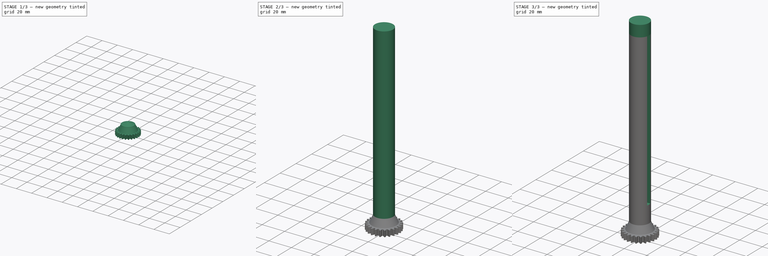
[diagram: build sequence overview — one tinted view per stage of 3, left to right]
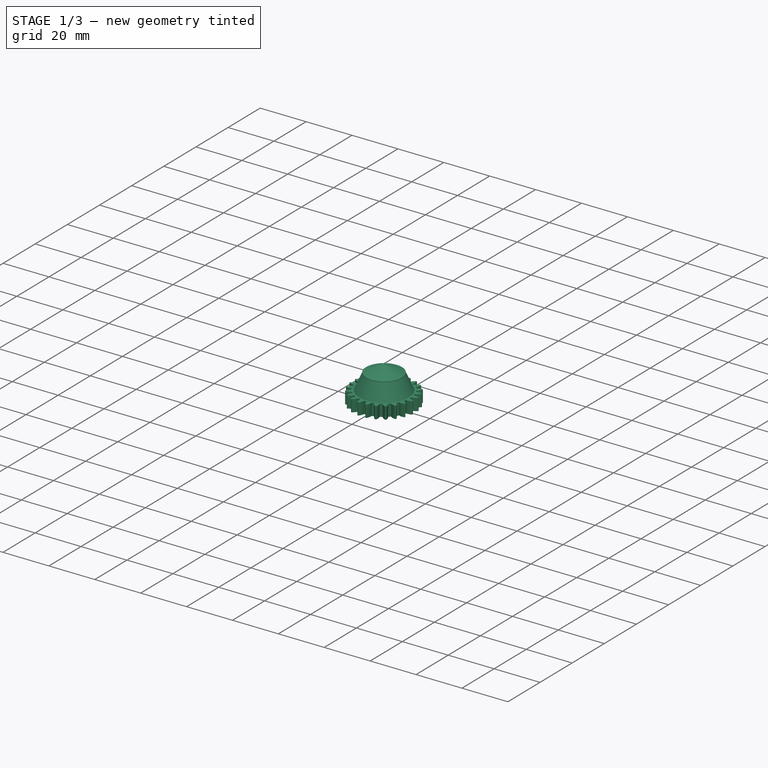
[diagram: stage 1 of 3 — iso view after this stage's code; geometry added in this stage tinted green]
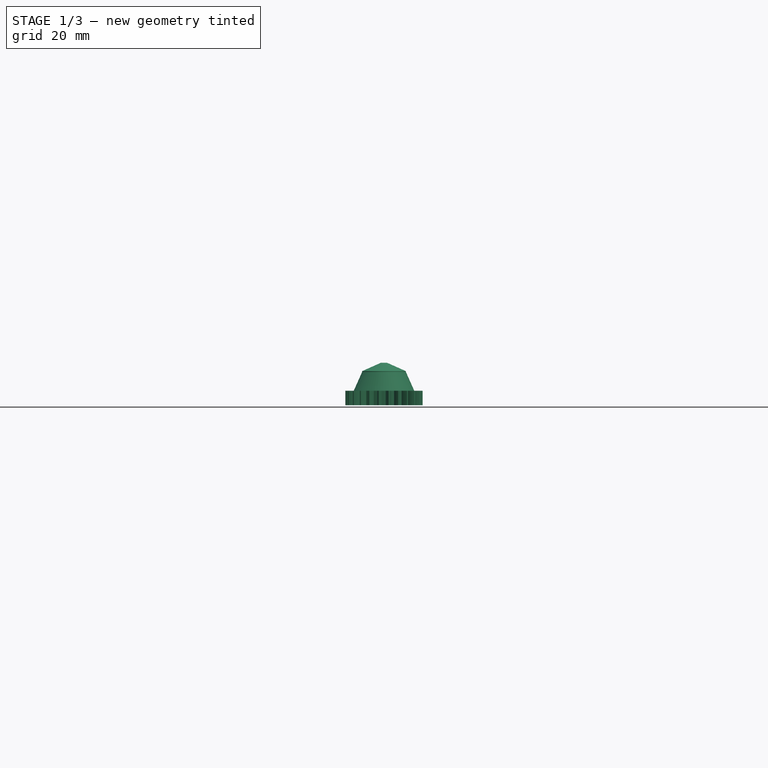
[diagram: stage 1 of 3 — front view after this stage's code; geometry added in this stage tinted green]
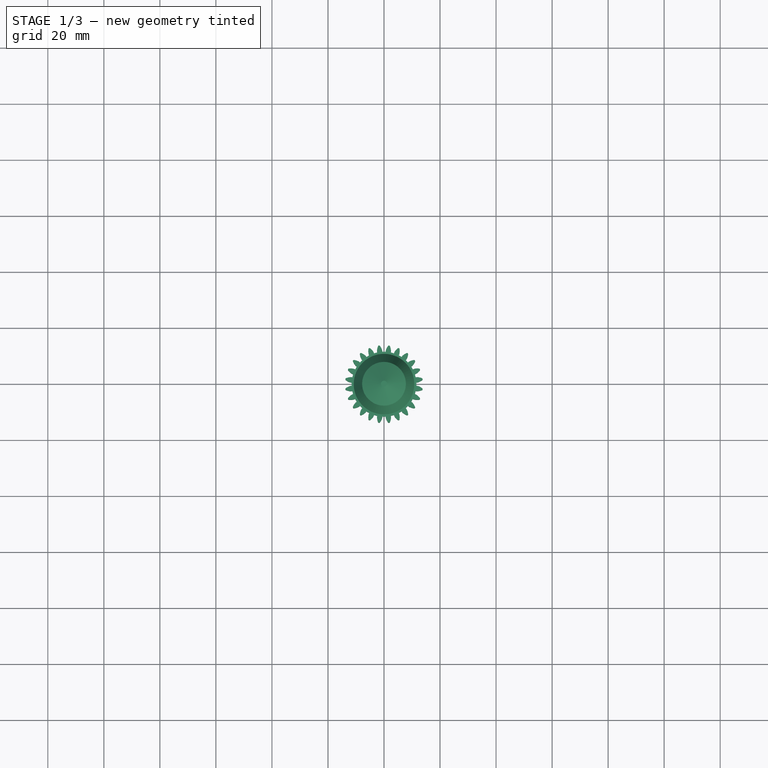
[diagram: stage 1 of 3 — top view after this stage's code; geometry added in this stage tinted green]
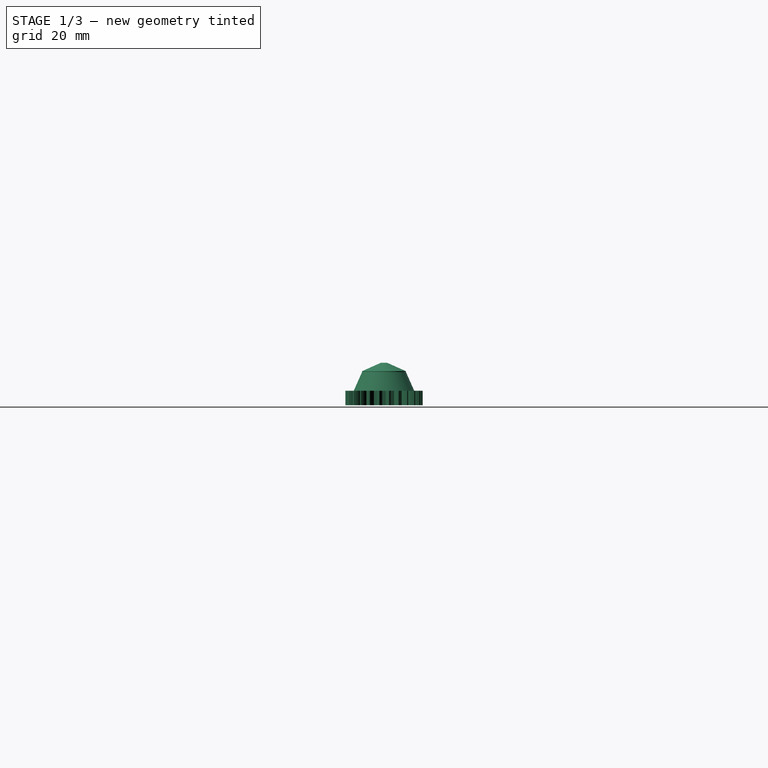
[diagram: stage 1 of 3 — right view after this stage's code; geometry added in this stage tinted green]
FCSTD DOCUMENT  (FreeCAD 1.0R38641 +468 (Git))
Label: probe-shaft-01
License: All rights reserved
LicenseURL: http://en.wikipedia.org/wiki/All_rights_reserved
objects: Sketcher::SketchObject×5, PartDesign::Pad×3, PartDesign::Pocket×2, PartDesign::Chamfer×1, PartDesign::AdditiveCylinder×1, PartDesign::Fillet×1, PartDesign::Body×1
note: 35 computed .brp shape members not serialized (recipe doc carries the construction recipe); baked Part::Feature solids carry a one-line shape summary decoded from their .brp

FEATURE [Sketcher::SketchObject] Sketch001
  ArcFitTolerance = 1e-06
  FullyConstrained = false
  MakeInternals = false
  sketch-geometry (144):
    g0: LineSegment StartX=11.5352 StartY=0.583552 StartZ=0 EndX=11.8451 EndY=0.600013 EndZ=0
    g1: BSplineCurve PolesCount=5 KnotsCount=2 Degree=4 IsPeriodic=0
    g2: ArcOfCircle CenterX=13.3835 CenterY=1.76198 CenterZ=0 NormalX=0 NormalY=0 NormalZ=1 AngleXU=-0.907688 Radius=0.399 StartAngle=0 EndAngle=2.07717
    g3: BSplineCurve PolesCount=5 KnotsCount=2 Degree=4 IsPeriodic=0
    g4: LineSegment StartX=11.5968 StartY=2.48617 StartZ=0 EndX=11.2932 EndY=2.42187 EndZ=0
    g5: ArcOfCircle CenterX=-1.377e-13 CenterY=-3.04e-14 CenterZ=0 NormalX=0 NormalY=0 NormalZ=1 AngleXU=0.211254 Radius=11.55 StartAngle=0 EndAngle=0.101091
    g6: LineSegment StartX=10.9912 StartY=3.54921 StartZ=0 EndX=11.2862 EndY=3.64531 EndZ=0
    g7: BSplineCurve PolesCount=5 KnotsCount=2 Degree=4 IsPeriodic=0
    g8: ArcOfCircle CenterX=12.4715 CenterY=5.16586 CenterZ=0 NormalX=0 NormalY=0 NormalZ=1 AngleXU=-0.645888 Radius=0.399 StartAngle=0 EndAngle=2.07717
    g9: BSplineCurve PolesCount=5 KnotsCount=2 Degree=4 IsPeriodic=0
    g10: LineSegment StartX=10.5582 StartY=5.40292 StartZ=0 EndX=10.2816 EndY=5.26225 EndZ=0
    g11: ArcOfCircle CenterX=-2.833e-13 CenterY=-1.781e-13 CenterZ=0 NormalX=0 NormalY=0 NormalZ=1 AngleXU=0.473053 Radius=11.55 StartAngle=0 EndAngle=0.101091
    g12: LineSegment StartX=9.69804 StartY=6.27299 StartZ=0 EndX=9.95815 EndY=6.44218 EndZ=0
    g13: BSplineCurve PolesCount=5 KnotsCount=2 Degree=4 IsPeriodic=0
    g14: ArcOfCircle CenterX=10.7095 CenterY=8.21769 CenterZ=0 NormalX=0 NormalY=0 NormalZ=1 AngleXU=-0.384089 Radius=0.399 StartAngle=0 EndAngle=2.07717
    g15: BSplineCurve PolesCount=5 KnotsCount=2 Degree=4 IsPeriodic=0
    g16: LineSegment StartX=8.80003 StartY=7.95148 StartZ=0 EndX=8.56929 EndY=7.74402 EndZ=0
    g17: ArcOfCircle CenterX=6.972e-13 CenterY=6.954e-13 CenterZ=0 NormalX=0 NormalY=0 NormalZ=1 AngleXU=0.734853 Radius=11.55 StartAngle=0 EndAngle=0.101091
    g18: LineSegment StartX=7.74402 StartY=8.56929 StartZ=0 EndX=7.95148 EndY=8.80003 EndZ=0
    g19: BSplineCurve PolesCount=5 KnotsCount=2 Degree=4 IsPeriodic=0
    g20: ArcOfCircle CenterX=8.21769 CenterY=10.7095 CenterZ=0 NormalX=0 NormalY=0 NormalZ=1 AngleXU=-0.12229 Radius=0.399 StartAngle=0 EndAngle=2.07717
    g21: BSplineCurve PolesCount=5 KnotsCount=2 Degree=4 IsPeriodic=0
    g22: LineSegment StartX=6.44218 StartY=9.95815 StartZ=0 EndX=6.27299 EndY=9.69804 EndZ=0
    g23: ArcOfCircle CenterX=6.652e-13 CenterY=1.1751e-12 CenterZ=0 NormalX=0 NormalY=0 NormalZ=1 AngleXU=0.996652 Radius=11.55 StartAngle=0 EndAngle=0.101091
    g24: LineSegment StartX=5.26225 StartY=10.2816 StartZ=0 EndX=5.40292 EndY=10.5582 EndZ=0
    g25: BSplineCurve PolesCount=5 KnotsCount=2 Degree=4 IsPeriodic=0
    g26: ArcOfCircle CenterX=5.16586 CenterY=12.4715 CenterZ=0 NormalX=0 NormalY=0 NormalZ=1 AngleXU=0.13951 Radius=0.399 StartAngle=0 EndAngle=2.07717
    g27: BSplineCurve PolesCount=5 KnotsCount=2 Degree=4 IsPeriodic=0
    g28: LineSegment StartX=3.64531 StartY=11.2862 StartZ=0 EndX=3.54921 EndY=10.9912 EndZ=0
    g29: ArcOfCircle CenterX=3.29e-14 CenterY=1.563e-13 CenterZ=0 NormalX=0 NormalY=0 NormalZ=1 AngleXU=1.25845 Radius=11.55 StartAngle=0 EndAngle=0.101091
    g30: LineSegment StartX=2.42187 StartY=11.2932 StartZ=0 EndX=2.48617 EndY=11.5968 EndZ=0
    g31: BSplineCurve PolesCount=5 KnotsCount=2 Degree=4 IsPeriodic=0
    g32: ArcOfCircle CenterX=1.76198 CenterY=13.3835 CenterZ=0 NormalX=0 NormalY=0 NormalZ=1 AngleXU=0.401309 Radius=0.399 StartAngle=0 EndAngle=2.07717
    g33: BSplineCurve PolesCount=5 KnotsCount=2 Degree=4 IsPeriodic=0
    g34: LineSegment StartX=0.600013 StartY=11.8451 StartZ=0 EndX=0.583552 EndY=11.5352 EndZ=0
    g35: ArcOfCircle CenterX=1.4e-15 CenterY=-2.2116e-12 CenterZ=0 NormalX=0 NormalY=0 NormalZ=1 AngleXU=1.52025 Radius=11.55 StartAngle=0 EndAngle=0.101091
    g36: LineSegment StartX=-0.583552 StartY=11.5352 StartZ=0 EndX=-0.600013 EndY=11.8451 EndZ=0
    g37: BSplineCurve PolesCount=5 KnotsCount=2 Degree=4 IsPeriodic=0
    g38: ArcOfCircle CenterX=-1.76198 CenterY=13.3835 CenterZ=0 NormalX=0 NormalY=0 NormalZ=1 AngleXU=0.663109 Radius=0.399 StartAngle=0 EndAngle=2.07717
    g39: BSplineCurve PolesCount=5 KnotsCount=2 Degree=4 IsPeriodic=0
    g40: LineSegment StartX=-2.48617 StartY=11.5968 StartZ=0 EndX=-2.42187 EndY=11.2932 EndZ=0
    g41: ArcOfCircle CenterX=2.749e-13 CenterY=-1.0578e-12 CenterZ=0 NormalX=0 NormalY=0 NormalZ=1 AngleXU=1.78205 Radius=11.55 StartAngle=0 EndAngle=0.101091
    g42: LineSegment StartX=-3.54921 StartY=10.9912 StartZ=0 EndX=-3.64531 EndY=11.2862 EndZ=0
    g43: BSplineCurve PolesCount=5 KnotsCount=2 Degree=4 IsPeriodic=0
    g44: ArcOfCircle CenterX=-5.16586 CenterY=12.4715 CenterZ=0 NormalX=0 NormalY=0 NormalZ=1 AngleXU=0.924908 Radius=0.399 StartAngle=0 EndAngle=2.07717
    g45: BSplineCurve PolesCount=5 KnotsCount=2 Degree=4 IsPeriodic=0
    g46: LineSegment StartX=-5.40292 StartY=10.5582 StartZ=0 EndX=-5.26225 EndY=10.2816 EndZ=0
    g47: ArcOfCircle CenterX=1.67e-13 CenterY=-2.736e-13 CenterZ=0 NormalX=0 NormalY=0 NormalZ=1 AngleXU=2.04385 Radius=11.55 StartAngle=0 EndAngle=0.101091
    g48: LineSegment StartX=-6.27299 StartY=9.69804 StartZ=0 EndX=-6.44218 EndY=9.95815 EndZ=0
    g49: BSplineCurve PolesCount=5 KnotsCount=2 Degree=4 IsPeriodic=0
    g50: ArcOfCircle CenterX=-8.21769 CenterY=10.7095 CenterZ=0 NormalX=0 NormalY=0 NormalZ=1 AngleXU=1.18671 Radius=0.399 StartAngle=0 EndAngle=2.07717
    g51: BSplineCurve PolesCount=5 KnotsCount=2 Degree=4 IsPeriodic=0
    g52: LineSegment StartX=-7.95148 StartY=8.80003 StartZ=0 EndX=-7.74402 EndY=8.56929 EndZ=0
    g53: ArcOfCircle CenterX=1.3545e-12 CenterY=-1.3571e-12 CenterZ=0 NormalX=0 NormalY=0 NormalZ=1 AngleXU=2.30565 Radius=11.55 StartAngle=0 EndAngle=0.101091
    g54: LineSegment StartX=-8.56929 StartY=7.74402 StartZ=0 EndX=-8.80003 EndY=7.95148 EndZ=0
    g55: BSplineCurve PolesCount=5 KnotsCount=2 Degree=4 IsPeriodic=0
    g56: ArcOfCircle CenterX=-10.7095 CenterY=8.21769 CenterZ=0 NormalX=0 NormalY=0 NormalZ=1 AngleXU=1.44851 Radius=0.399 StartAngle=0 EndAngle=2.07717
    g57: BSplineCurve PolesCount=5 KnotsCount=2 Degree=4 IsPeriodic=0
    g58: LineSegment StartX=-9.95815 StartY=6.44218 StartZ=0 EndX=-9.69804 EndY=6.27299 EndZ=0
    g59: ArcOfCircle CenterX=-8.029e-13 CenterY=4.716e-13 CenterZ=0 NormalX=0 NormalY=0 NormalZ=1 AngleXU=2.56745 Radius=11.55 StartAngle=0 EndAngle=0.101091
    g60: LineSegment StartX=-10.2816 StartY=5.26225 StartZ=0 EndX=-10.5582 EndY=5.40292 EndZ=0
    g61: BSplineCurve PolesCount=5 KnotsCount=2 Degree=4 IsPeriodic=0
    g62: ArcOfCircle CenterX=-12.4715 CenterY=5.16586 CenterZ=0 NormalX=0 NormalY=0 NormalZ=1 AngleXU=1.71031 Radius=0.399 StartAngle=0 EndAngle=2.07717
    g63: BSplineCurve PolesCount=5 KnotsCount=2 Degree=4 IsPeriodic=0
    g64: LineSegment StartX=-11.2862 StartY=3.64531 StartZ=0 EndX=-10.9912 EndY=3.54921 EndZ=0
    g65: ArcOfCircle CenterX=9.21e-13 CenterY=-2.329e-13 CenterZ=0 NormalX=0 NormalY=0 NormalZ=1 AngleXU=2.82925 Radius=11.55 StartAngle=0 EndAngle=0.101091
    g66: LineSegment StartX=-11.2932 StartY=2.42187 StartZ=0 EndX=-11.5968 EndY=2.48617 EndZ=0
    g67: BSplineCurve PolesCount=5 KnotsCount=2 Degree=4 IsPeriodic=0
    g68: ArcOfCircle CenterX=-13.3835 CenterY=1.76198 CenterZ=0 NormalX=0 NormalY=0 NormalZ=1 AngleXU=1.97211 Radius=0.399 StartAngle=0 EndAngle=2.07717
    g69: BSplineCurve PolesCount=5 KnotsCount=2 Degree=4 IsPeriodic=0
    g70: LineSegment StartX=-11.8451 StartY=0.600013 StartZ=0 EndX=-11.5352 EndY=0.583552 EndZ=0
    g71: ArcOfCircle CenterX=5.107e-13 CenterY=-1.29e-14 CenterZ=0 NormalX=0 NormalY=0 NormalZ=1 AngleXU=3.09105 Radius=11.55 StartAngle=0 EndAngle=0.101091
    g72: LineSegment StartX=-11.5352 StartY=-0.583552 StartZ=0 EndX=-11.8451 EndY=-0.600013 EndZ=0
    g73: BSplineCurve PolesCount=5 KnotsCount=2 Degree=4 IsPeriodic=0
    g74: ArcOfCircle CenterX=-13.3835 CenterY=-1.76198 CenterZ=0 NormalX=0 NormalY=0 NormalZ=1 AngleXU=2.2339 Radius=0.399 StartAngle=0 EndAngle=2.07717
    g75: BSplineCurve PolesCount=5 KnotsCount=2 Degree=4 IsPeriodic=0
    g76: LineSegment StartX=-11.5968 StartY=-2.48617 StartZ=0 EndX=-11.2932 EndY=-2.42187 EndZ=0
    g77: ArcOfCircle CenterX=1.0543e-12 CenterY=2.782e-13 CenterZ=0 NormalX=0 NormalY=0 NormalZ=1 AngleXU=-2.93034 Radius=11.55 StartAngle=0 EndAngle=0.101091
    g78: LineSegment StartX=-10.9912 StartY=-3.54921 StartZ=0 EndX=-11.2862 EndY=-3.64531 EndZ=0
    g79: BSplineCurve PolesCount=5 KnotsCount=2 Degree=4 IsPeriodic=0
    g80: ArcOfCircle CenterX=-12.4715 CenterY=-5.16586 CenterZ=0 NormalX=0 NormalY=0 NormalZ=1 AngleXU=2.4957 Radius=0.399 StartAngle=0 EndAngle=2.07717
    g81: BSplineCurve PolesCount=5 KnotsCount=2 Degree=4 IsPeriodic=0
    g82: LineSegment StartX=-10.5582 StartY=-5.40292 StartZ=0 EndX=-10.2816 EndY=-5.26225 EndZ=0
    g83: ArcOfCircle CenterX=4.414e-13 CenterY=2.576e-13 CenterZ=0 NormalX=0 NormalY=0 NormalZ=1 AngleXU=-2.66854 Radius=11.55 StartAngle=0 EndAngle=0.101091
    g84: LineSegment StartX=-9.69804 StartY=-6.27299 StartZ=0 EndX=-9.95815 EndY=-6.44218 EndZ=0
    g85: BSplineCurve PolesCount=5 KnotsCount=2 Degree=4 IsPeriodic=0
    g86: ArcOfCircle CenterX=-10.7095 CenterY=-8.21769 CenterZ=0 NormalX=0 NormalY=0 NormalZ=1 AngleXU=2.7575 Radius=0.399 StartAngle=0 EndAngle=2.07717
    g87: BSplineCurve PolesCount=5 KnotsCount=2 Degree=4 IsPeriodic=0
    g88: LineSegment StartX=-8.80003 StartY=-7.95148 StartZ=0 EndX=-8.56929 EndY=-7.74402 EndZ=0
    g89: ArcOfCircle CenterX=1.3571e-12 CenterY=1.3545e-12 CenterZ=0 NormalX=0 NormalY=0 NormalZ=1 AngleXU=-2.40674 Radius=11.55 StartAngle=0 EndAngle=0.101091
    g90: LineSegment StartX=-7.74402 StartY=-8.56929 StartZ=0 EndX=-7.95148 EndY=-8.80003 EndZ=0
    g91: BSplineCurve PolesCount=5 KnotsCount=2 Degree=4 IsPeriodic=0
    g92: ArcOfCircle CenterX=-8.21769 CenterY=-10.7095 CenterZ=0 NormalX=0 NormalY=0 NormalZ=1 AngleXU=3.0193 Radius=0.399 StartAngle=0 EndAngle=2.07717
    g93: BSplineCurve PolesCount=5 KnotsCount=2 Degree=4 IsPeriodic=0
    g94: LineSegment StartX=-6.44218 StartY=-9.95815 StartZ=0 EndX=-6.27299 EndY=-9.69804 EndZ=0
    g95: ArcOfCircle CenterX=-4.716e-13 CenterY=-8.011e-13 CenterZ=0 NormalX=0 NormalY=0 NormalZ=1 AngleXU=-2.14494 Radius=11.55 StartAngle=0 EndAngle=0.101091
    g96: LineSegment StartX=-5.26225 StartY=-10.2816 StartZ=0 EndX=-5.40292 EndY=-10.5582 EndZ=0
    g97: BSplineCurve PolesCount=5 KnotsCount=2 Degree=4 IsPeriodic=0
    g98: ArcOfCircle CenterX=-5.16586 CenterY=-12.4715 CenterZ=0 NormalX=0 NormalY=0 NormalZ=1 AngleXU=-3.00208 Radius=0.399 StartAngle=0 EndAngle=2.07717
    g99: BSplineCurve PolesCount=5 KnotsCount=2 Degree=4 IsPeriodic=0
    g100: LineSegment StartX=-3.64531 StartY=-11.2862 StartZ=0 EndX=-3.54921 EndY=-10.9912 EndZ=0
    g101: ArcOfCircle CenterX=2.329e-13 CenterY=9.21e-13 CenterZ=0 NormalX=0 NormalY=0 NormalZ=1 AngleXU=-1.88314 Radius=11.55 StartAngle=0 EndAngle=0.101091
    g102: LineSegment StartX=-2.42187 StartY=-11.2932 StartZ=0 EndX=-2.48617 EndY=-11.5968 EndZ=0
    g103: BSplineCurve PolesCount=5 KnotsCount=2 Degree=4 IsPeriodic=0
    g104: ArcOfCircle CenterX=-1.76198 CenterY=-13.3835 CenterZ=0 NormalX=0 NormalY=0 NormalZ=1 AngleXU=-2.74028 Radius=0.399 StartAngle=0 EndAngle=2.07717
    g105: BSplineCurve PolesCount=5 KnotsCount=2 Degree=4 IsPeriodic=0
    g106: LineSegment StartX=-0.600013 StartY=-11.8451 StartZ=0 EndX=-0.583552 EndY=-11.5352 EndZ=0
    g107: ArcOfCircle CenterX=7.1e-15 CenterY=1.5135e-12 CenterZ=0 NormalX=0 NormalY=0 NormalZ=1 AngleXU=-1.62134 Radius=11.55 StartAngle=0 EndAngle=0.101091
    g108: LineSegment StartX=0.583552 StartY=-11.5352 StartZ=0 EndX=0.600013 EndY=-11.8451 EndZ=0
    g109: BSplineCurve PolesCount=5 KnotsCount=2 Degree=4 IsPeriodic=0
    g110: ArcOfCircle CenterX=1.76198 CenterY=-13.3835 CenterZ=0 NormalX=0 NormalY=0 NormalZ=1 AngleXU=-2.47848 Radius=0.399 StartAngle=0 EndAngle=2.07717
    g111: BSplineCurve PolesCount=5 KnotsCount=2 Degree=4 IsPeriodic=0
    g112: LineSegment StartX=2.48617 StartY=-11.5968 StartZ=0 EndX=2.42187 EndY=-11.2932 EndZ=0
    g113: ArcOfCircle CenterX=2.849e-13 CenterY=-1.0463e-12 CenterZ=0 NormalX=0 NormalY=0 NormalZ=1 AngleXU=-1.35954 Radius=11.55 StartAngle=0 EndAngle=0.101091
    g114: LineSegment StartX=3.54921 StartY=-10.9912 StartZ=0 EndX=3.64531 EndY=-11.2862 EndZ=0
    g115: BSplineCurve PolesCount=5 KnotsCount=2 Degree=4 IsPeriodic=0
    g116: ArcOfCircle CenterX=5.16586 CenterY=-12.4715 CenterZ=0 NormalX=0 NormalY=0 NormalZ=1 AngleXU=-2.21668 Radius=0.399 StartAngle=0 EndAngle=2.07717
    g117: BSplineCurve PolesCount=5 KnotsCount=2 Degree=4 IsPeriodic=0
    g118: LineSegment StartX=5.40292 StartY=-10.5582 StartZ=0 EndX=5.26225 EndY=-10.2816 EndZ=0
    g119: ArcOfCircle CenterX=2.784e-13 CenterY=-4.805e-13 CenterZ=0 NormalX=0 NormalY=0 NormalZ=1 AngleXU=-1.09774 Radius=11.55 StartAngle=0 EndAngle=0.101091
    g120: LineSegment StartX=6.27299 StartY=-9.69804 StartZ=0 EndX=6.44218 EndY=-9.95815 EndZ=0
    g121: BSplineCurve PolesCount=5 KnotsCount=2 Degree=4 IsPeriodic=0
    g122: ArcOfCircle CenterX=8.21769 CenterY=-10.7095 CenterZ=0 NormalX=0 NormalY=0 NormalZ=1 AngleXU=-1.95489 Radius=0.399 StartAngle=0 EndAngle=2.07717
    g123: BSplineCurve PolesCount=5 KnotsCount=2 Degree=4 IsPeriodic=0
    g124: LineSegment StartX=7.95148 StartY=-8.80003 StartZ=0 EndX=7.74402 EndY=-8.56929 EndZ=0
    g125: ArcOfCircle CenterX=6.883e-13 CenterY=-7.043e-13 CenterZ=0 NormalX=0 NormalY=0 NormalZ=1 AngleXU=-0.835944 Radius=11.55 StartAngle=0 EndAngle=0.101091
    g126: LineSegment StartX=8.56929 StartY=-7.74402 StartZ=0 EndX=8.80003 EndY=-7.95148 EndZ=0
    g127: BSplineCurve PolesCount=5 KnotsCount=2 Degree=4 IsPeriodic=0
    g128: ArcOfCircle CenterX=10.7095 CenterY=-8.21769 CenterZ=0 NormalX=0 NormalY=0 NormalZ=1 AngleXU=-1.69309 Radius=0.399 StartAngle=0 EndAngle=2.07717
    g129: BSplineCurve PolesCount=5 KnotsCount=2 Degree=4 IsPeriodic=0
    g130: LineSegment StartX=9.95815 StartY=-6.44218 StartZ=0 EndX=9.69804 EndY=-6.27299 EndZ=0
    g131: ArcOfCircle CenterX=8.011e-13 CenterY=-4.716e-13 CenterZ=0 NormalX=0 NormalY=0 NormalZ=1 AngleXU=-0.574144 Radius=11.55 StartAngle=0 EndAngle=0.101091
    g132: LineSegment StartX=10.2816 StartY=-5.26225 StartZ=0 EndX=10.5582 EndY=-5.40292 EndZ=0
    g133: BSplineCurve PolesCount=5 KnotsCount=2 Degree=4 IsPeriodic=0
    g134: ArcOfCircle CenterX=12.4715 CenterY=-5.16586 CenterZ=0 NormalX=0 NormalY=0 NormalZ=1 AngleXU=-1.43129 Radius=0.399 StartAngle=0 EndAngle=2.07717
    g135: BSplineCurve PolesCount=5 KnotsCount=2 Degree=4 IsPeriodic=0
    g136: LineSegment StartX=11.2862 StartY=-3.64531 StartZ=0 EndX=10.9912 EndY=-3.54921 EndZ=0
    g137: ArcOfCircle CenterX=-9.21e-13 CenterY=2.32e-13 CenterZ=0 NormalX=0 NormalY=0 NormalZ=1 AngleXU=-0.312345 Radius=11.55 StartAngle=0 EndAngle=0.101091
    g138: LineSegment StartX=11.2932 StartY=-2.42187 StartZ=0 EndX=11.5968 EndY=-2.48617 EndZ=0
    g139: BSplineCurve PolesCount=5 KnotsCount=2 Degree=4 IsPeriodic=0
    g140: ArcOfCircle CenterX=13.3835 CenterY=-1.76198 CenterZ=0 NormalX=0 NormalY=0 NormalZ=1 AngleXU=-1.16949 Radius=0.399 StartAngle=0 EndAngle=2.07717
    g141: BSplineCurve PolesCount=5 KnotsCount=2 Degree=4 IsPeriodic=0
    g142: LineSegment StartX=11.8451 StartY=-0.600013 StartZ=0 EndX=11.5352 EndY=-0.583552 EndZ=0
    g143: ArcOfCircle CenterX=-1.5135e-12 CenterY=6.2e-15 CenterZ=0 NormalX=0 NormalY=0 NormalZ=1 AngleXU=-0.0505455 Radius=11.55 StartAngle=0 EndAngle=0.101091
  constraints (144):
    c: Coincident(g0,g1)
    c: Coincident(g1,g2)
    c: Coincident(g2,g3)
    c: Coincident(g3,g4)
    c: Coincident(g4,g5)
    c: Coincident(g5,g6)
    c: Coincident(g6,g7)
    c: Coincident(g7,g8)
    c: Coincident(g8,g9)
    c: Coincident(g9,g10)
    c: Coincident(g10,g11)
    c: Coincident(g11,g12)
    c: Coincident(g12,g13)
    c: Coincident(g13,g14)
    c: Coincident(g14,g15)
    c: Coincident(g15,g16)
    c: Coincident(g16,g17)
    c: Coincident(g17,g18)
    c: Coincident(g18,g19)
    c: Coincident(g19,g20)
    c: Coincident(g20,g21)
    c: Coincident(g21,g22)
    c: Coincident(g22,g23)
    c: Coincident(g23,g24)
    c: Coincident(g24,g25)
    c: Coincident(g25,g26)
    c: Coincident(g26,g27)
    c: Coincident(g27,g28)
    c: Coincident(g28,g29)
    c: Coincident(g29,g30)
    c: Coincident(g30,g31)
    c: Coincident(g31,g32)
    c: Coincident(g32,g33)
    c: Coincident(g33,g34)
    c: Coincident(g34,g35)
    c: Coincident(g35,g36)
    c: Coincident(g36,g37)
    c: Coincident(g37,g38)
    c: Coincident(g38,g39)
    c: Coincident(g39,g40)
    c: Coincident(g40,g41)
    c: Coincident(g41,g42)
    c: Coincident(g42,g43)
    c: Coincident(g43,g44)
    c: Coincident(g44,g45)
    c: Coincident(g45,g46)
    c: Coincident(g46,g47)
    c: Coincident(g47,g48)
    c: Coincident(g48,g49)
    c: Coincident(g49,g50)
    c: Coincident(g50,g51)
    c: Coincident(g51,g52)
    c: Coincident(g52,g53)
    c: Coincident(g53,g54)
    c: Coincident(g54,g55)
    c: Coincident(g55,g56)
    c: Coincident(g56,g57)
    c: Coincident(g57,g58)
    c: Coincident(g58,g59)
    c: Coincident(g59,g60)
    c: Coincident(g60,g61)
    c: Coincident(g61,g62)
    c: Coincident(g62,g63)
    c: Coincident(g63,g64)
    c: Coincident(g64,g65)
    c: Coincident(g65,g66)
    c: Coincident(g66,g67)
    c: Coincident(g67,g68)
    c: Coincident(g68,g69)
    c: Coincident(g69,g70)
    c: Coincident(g70,g71)
    c: Coincident(g71,g72)
    c: Coincident(g72,g73)
    c: Coincident(g73,g74)
    c: Coincident(g74,g75)
    c: Coincident(g75,g76)
    c: Coincident(g76,g77)
    c: Coincident(g77,g78)
    c: Coincident(g78,g79)
    c: Coincident(g79,g80)
    c: Coincident(g80,g81)
    c: Coincident(g81,g82)
    c: Coincident(g82,g83)
    c: Coincident(g83,g84)
    c: Coincident(g84,g85)
    c: Coincident(g85,g86)
    c: Coincident(g86,g87)
    c: Coincident(g87,g88)
    c: Coincident(g88,g89)
    c: Coincident(g89,g90)
    c: Coincident(g90,g91)
    c: Coincident(g91,g92)
    c: Coincident(g92,g93)
    c: Coincident(g93,g94)
    c: Coincident(g94,g95)
    c: Coincident(g95,g96)
    c: Coincident(g96,g97)
    c: Coincident(g97,g98)
    c: Coincident(g98,g99)
    c: Coincident(g99,g100)
    c: Coincident(g100,g101)
    c: Coincident(g101,g102)
    c: Coincident(g102,g103)
    c: Coincident(g103,g104)
    c: Coincident(g104,g105)
    c: Coincident(g105,g106)
    c: Coincident(g106,g107)
    c: Coincident(g107,g108)
    c: Coincident(g108,g109)
    c: Coincident(g109,g110)
    c: Coincident(g110,g111)
    c: Coincident(g111,g112)
    c: Coincident(g112,g113)
    c: Coincident(g113,g114)
    c: Coincident(g114,g115)
    c: Coincident(g115,g116)
    c: Coincident(g116,g117)
    c: Coincident(g117,g118)
    c: Coincident(g118,g119)
    c: Coincident(g119,g120)
    c: Coincident(g120,g121)
    c: Coincident(g121,g122)
    c: Coincident(g122,g123)
    c: Coincident(g123,g124)
    c: Coincident(g124,g125)
    c: Coincident(g125,g126)
    c: Coincident(g126,g127)
    c: Coincident(g127,g128)
    c: Coincident(g128,g129)
    c: Coincident(g129,g130)
    c: Coincident(g130,g131)
    c: Coincident(g131,g132)
    c: Coincident(g132,g133)
    c: Coincident(g133,g134)
    c: Coincident(g134,g135)
    c: Coincident(g135,g136)
    c: Coincident(g136,g137)
    c: Coincident(g137,g138)
    c: Coincident(g138,g139)
    c: Coincident(g139,g140)
    c: Coincident(g140,g141)
    c: Coincident(g141,g142)
    c: Coincident(g142,g143)
    c: Coincident(g143,g0)
FEATURE [PartDesign::Pad] Pad
  Direction = (0,0,1)
  Length = 5.2
  Length2 = 10
  Profile = -> Sketch001
  ReferenceAxis = -> Sketch001 [N_Axis]
  Refine = true
  Suppressed = false
  Type = 0
FEATURE [Sketcher::SketchObject] Sketch
  ArcFitTolerance = 1e-06
  FullyConstrained = true
  MakeInternals = false
  MapMode = 5
  Placement = pos=(0,0,5.2) rot=(0,0,1;0rad)
  sketch-geometry (1):
    g0: Circle CenterX=0 CenterY=0 CenterZ=0 NormalX=0 NormalY=0 NormalZ=1 AngleXU=0 Radius=7.8
  constraints (2):
    c: Coincident(g0,g-1)
    c: Diameter(g0) = 15.6
FEATURE [PartDesign::Pad] Pad001
  BaseFeature = -> Pad
  Direction = (0,0,1)
  Length = 10
  Length2 = 10
  Profile = -> Sketch
  ReferenceAxis = -> Sketch [N_Axis]
  Refine = true
  Suppressed = false
  Type = 0
FEATURE [PartDesign::Chamfer] Chamfer
  Angle = 66
  Base = -> Pad001 [Face147]
  BaseFeature = -> Pad001
  ChamferType = 2
  FlipDirection = false
  Refine = true
  Size = 3
  Size2 = 1
  SupportTransform = false
  Suppressed = false
  UseAllEdges = false
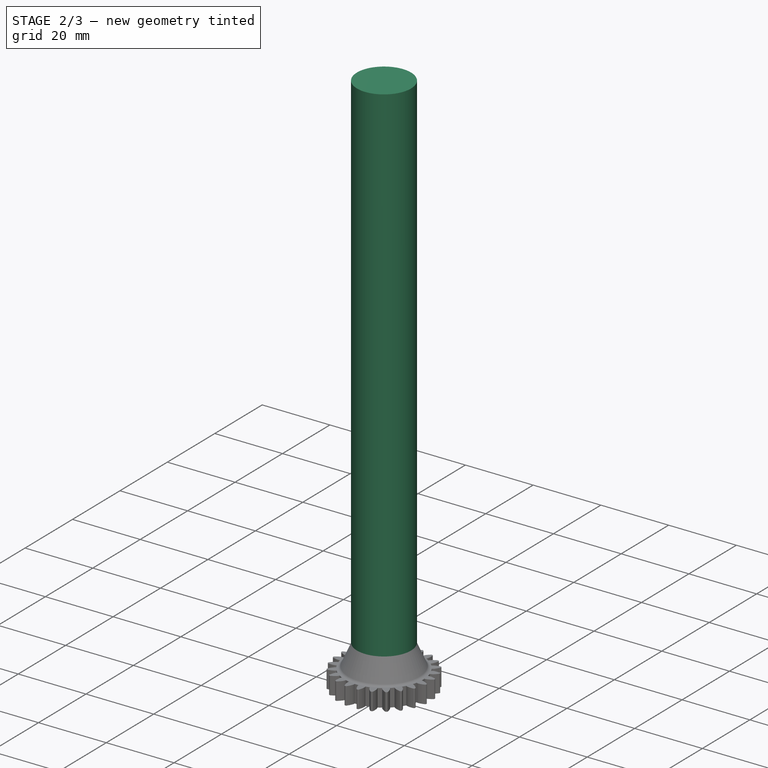
[diagram: stage 2 of 3 — iso view after this stage's code; geometry added in this stage tinted green]
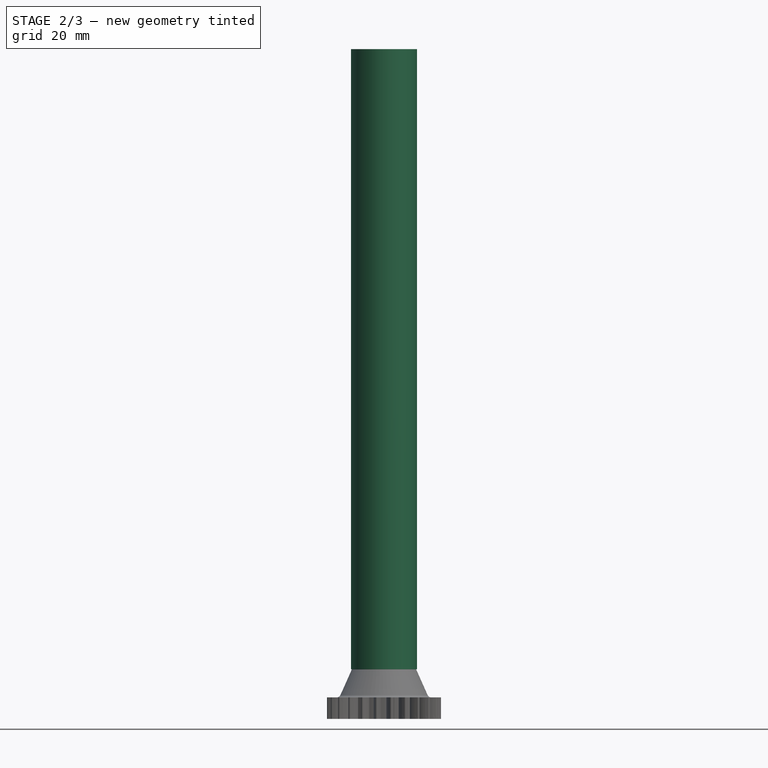
[diagram: stage 2 of 3 — front view after this stage's code; geometry added in this stage tinted green]
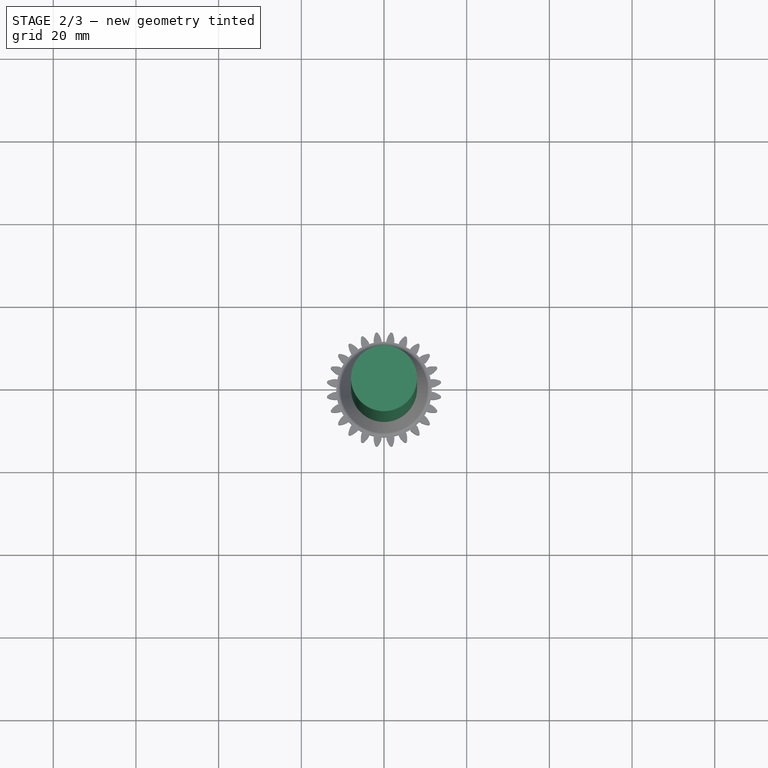
[diagram: stage 2 of 3 — top view after this stage's code; geometry added in this stage tinted green]
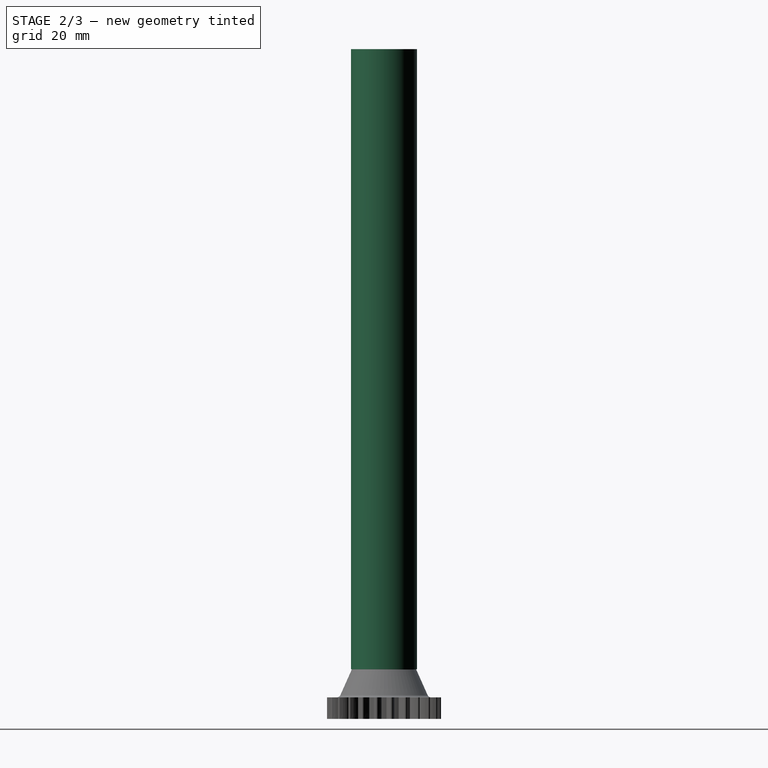
[diagram: stage 2 of 3 — right view after this stage's code; geometry added in this stage tinted green]
FEATURE [PartDesign::AdditiveCylinder] Cylinder
  Angle = 360
  AttacherType = Attacher::AttachEngine3D
  AttachmentOffset = pos=(0,0,12) rot=(0,0,1;0rad)
  AttachmentSupport = -> [XY_Plane]
  BaseFeature = -> Chamfer
  FirstAngle = 0
  Height = 150
  MapMode = 5
  Placement = pos=(0,0,12) rot=(0,0,1;0rad)
  Radius = 7.98
  Refine = true
  SecondAngle = 0
  Suppressed = false
FEATURE [PartDesign::Fillet] Fillet
  Base = -> Cylinder [Edge1]
  BaseFeature = -> Cylinder
  Placement = pos=(0,0,12) rot=(0,0,1;0rad)
  Radius = 1
  Refine = true
  SupportTransform = false
  Suppressed = false
  UseAllEdges = false
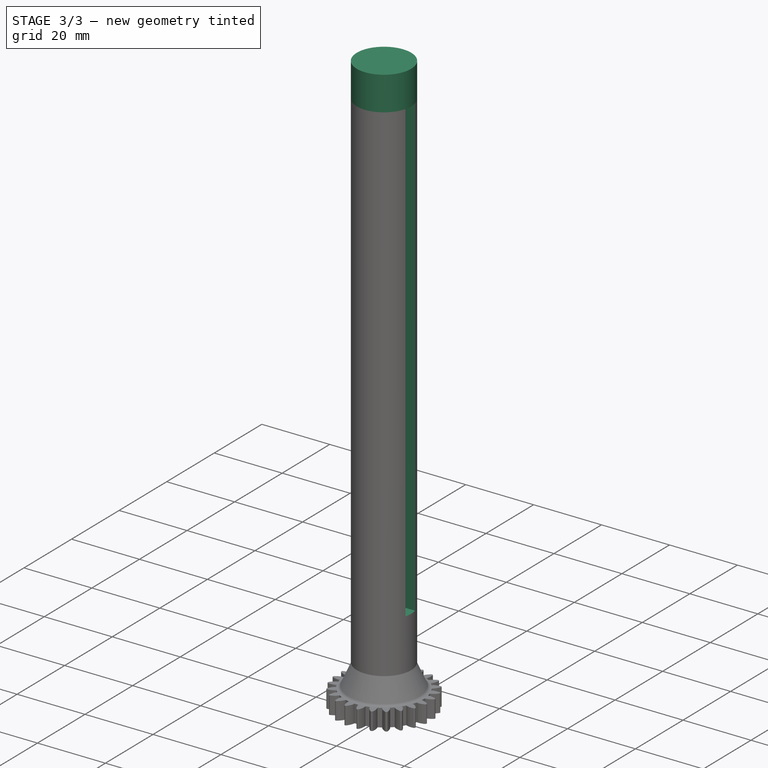
[diagram: stage 3 of 3 — iso view after this stage's code; geometry added in this stage tinted green]
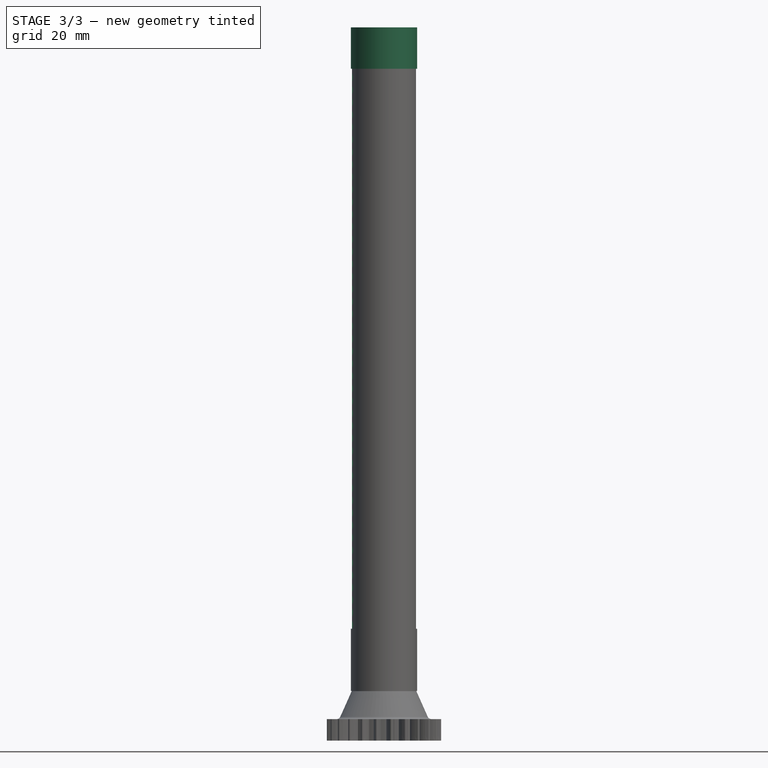
[diagram: stage 3 of 3 — front view after this stage's code; geometry added in this stage tinted green]
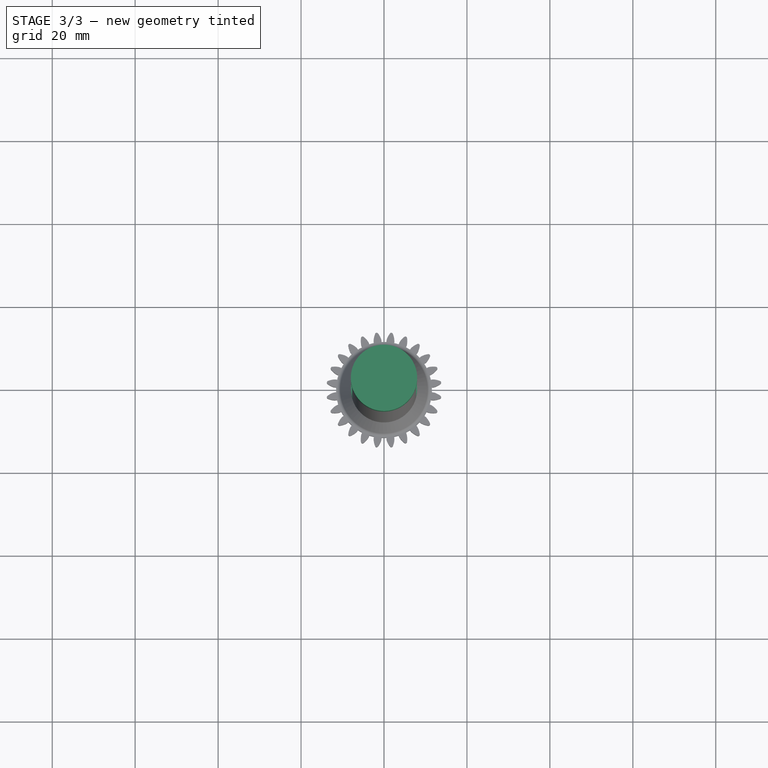
[diagram: stage 3 of 3 — top view after this stage's code; geometry added in this stage tinted green]
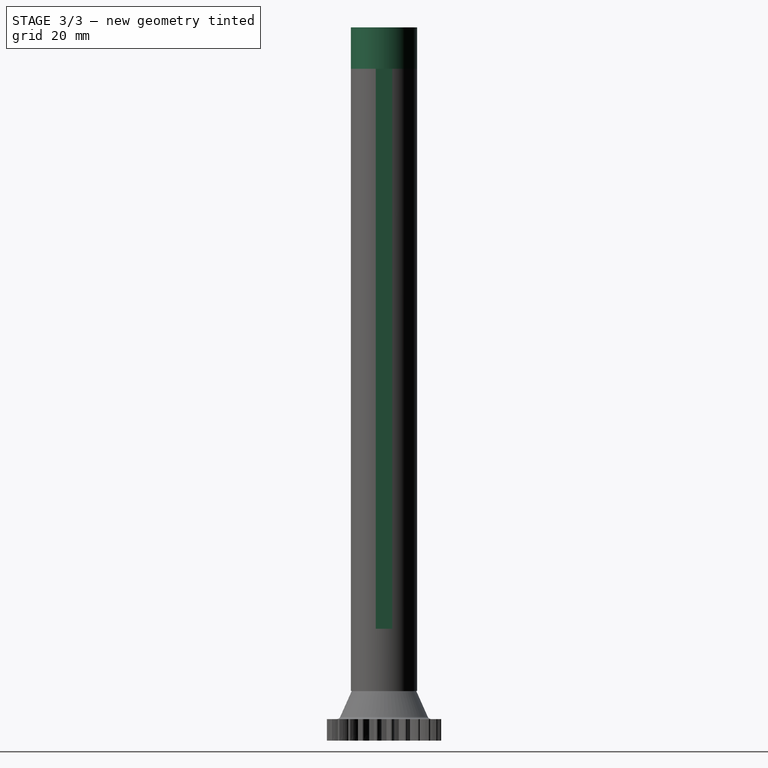
[diagram: stage 3 of 3 — right view after this stage's code; geometry added in this stage tinted green]
FEATURE [Sketcher::SketchObject] Sketch002
  ArcFitTolerance = 1e-06
  FullyConstrained = true
  MakeInternals = false
  MapMode = 5
  Placement = pos=(0,0,162) rot=(0,0,1;0rad)
  sketch-geometry (8):
    g0: LineSegment StartX=-8 StartY=2 StartZ=0 EndX=-8 EndY=-2 EndZ=0
    g1: LineSegment StartX=-8 StartY=-2 StartZ=0 EndX=-5 EndY=-2 EndZ=0
    g2: LineSegment StartX=-5 StartY=-2 StartZ=0 EndX=-5 EndY=2 EndZ=0
    g3: LineSegment StartX=-5 StartY=2 StartZ=0 EndX=-8 EndY=2 EndZ=0
    g4: LineSegment StartX=5 StartY=2 StartZ=0 EndX=5 EndY=-2 EndZ=0
    g5: LineSegment StartX=5 StartY=-2 StartZ=0 EndX=8 EndY=-2 EndZ=0
    g6: LineSegment StartX=8 StartY=-2 StartZ=0 EndX=8 EndY=2 EndZ=0
    g7: LineSegment StartX=8 StartY=2 StartZ=0 EndX=5 EndY=2 EndZ=0
  constraints (22):
    c: Coincident(g0,g1)
    c: Coincident(g1,g2)
    c: Coincident(g2,g3)
    c: Coincident(g3,g0)
    c: Vertical(g2)
    c: Horizontal(g1)
    c: Horizontal(g3)
    c: Coincident(g4,g5)
    c: Coincident(g5,g6)
    c: Coincident(g6,g7)
    c: Coincident(g7,g4)
    c: Vertical(g6)
    c: Horizontal(g5)
    c: Horizontal(g7)
    c: DistanceX(g0) = -8
    c: DistanceX(g5) = 8
    c: Symmetric(g0,g0,g-1)
    c: Symmetric(g4,g4,g-1)
    c: DistanceY(g2,g2) = 4
    c: DistanceY(g6,g6) = 4
    c: DistanceX(g1,g1) = 3
    c: DistanceX(g5,g5) = 3
FEATURE [PartDesign::Pocket] Pocket
  BaseFeature = -> Fillet
  Direction = (0,0,-1)
  Length = 135
  Length2 = 5
  Placement = pos=(0,0,12) rot=(0,0,1;0rad)
  Profile = -> Sketch002
  ReferenceAxis = -> Sketch002 [N_Axis]
  Refine = true
  Suppressed = false
  Type = 0
FEATURE [Sketcher::SketchObject] Sketch003
  ArcFitTolerance = 1e-06
  FullyConstrained = true
  MakeInternals = false
  MapMode = 5
  Placement = pos=(0,0,162) rot=(0,0,1;0rad)
  sketch-geometry (1):
    g0: Circle CenterX=0 CenterY=0 CenterZ=0 NormalX=0 NormalY=0 NormalZ=1 AngleXU=0 Radius=8
  constraints (2):
    c: Coincident(g0,g-1)
    c: Diameter(g0) = 16
FEATURE [PartDesign::Pad] Pad002
  BaseFeature = -> Pocket
  Direction = (0,0,1)
  Length = 10
  Length2 = 10
  Placement = pos=(0,0,12) rot=(0,0,1;0rad)
  Profile = -> Sketch003
  ReferenceAxis = -> Sketch003 [N_Axis]
  Refine = true
  Suppressed = false
  Type = 0
FEATURE [Sketcher::SketchObject] Sketch004
  ArcFitTolerance = 1e-06
  FullyConstrained = true
  MakeInternals = false
  MapMode = 5
  Placement = pos=(-5,0,12) rot=(0.57735,-0.57735,-0.57735;2.0944rad)
  sketch-geometry (92):
    g0: ArcOfCircle CenterX=1.8 CenterY=15.9 CenterZ=0 NormalX=0 NormalY=0 NormalZ=1 AngleXU=0 Radius=1 StartAngle=4.71239 EndAngle=7.33038
    g1: ArcOfCircle CenterX=1.8 CenterY=18.9 CenterZ=0 NormalX=0 NormalY=0 NormalZ=1 AngleXU=0 Radius=1 StartAngle=5.23599 EndAngle=7.33038
    g2: ArcOfCircle CenterX=2.61965 CenterY=17.4 CenterZ=0 NormalX=0 NormalY=0 NormalZ=1 AngleXU=0 Radius=0.71 StartAngle=2.0378 EndAngle=4.24539
    g3: ArcOfCircle CenterX=2.66662 CenterY=20.401 CenterZ=0 NormalX=0 NormalY=0 NormalZ=1 AngleXU=0 Radius=0.733235 StartAngle=2.0944 EndAngle=4.18879
    g4: ArcOfCircle CenterX=1.8 CenterY=21.9 CenterZ=0 NormalX=0 NormalY=0 NormalZ=1 AngleXU=0 Radius=0.998224 StartAngle=5.23701 EndAngle=7.32936
    g5: ArcOfCircle CenterX=2.66662 CenterY=23.401 CenterZ=0 NormalX=0 NormalY=0 NormalZ=1 AngleXU=0 Radius=0.735012 StartAngle=2.093 EndAngle=4.19019
    g6: ArcOfCircle CenterX=1.8 CenterY=24.9 CenterZ=0 NormalX=0 NormalY=0 NormalZ=1 AngleXU=0 Radius=0.99645 StartAngle=5.23805 EndAngle=7.32832
    g7: ArcOfCircle CenterX=2.66662 CenterY=26.401 CenterZ=0 NormalX=0 NormalY=0 NormalZ=1 AngleXU=0 Radius=0.73679 StartAngle=2.09161 EndAngle=4.19157
    g8: ArcOfCircle CenterX=1.8 CenterY=27.9 CenterZ=0 NormalX=0 NormalY=0 NormalZ=1 AngleXU=0 Radius=0.994677 StartAngle=5.23908 EndAngle=7.32729
    g9: ArcOfCircle CenterX=2.66662 CenterY=29.401 CenterZ=0 NormalX=0 NormalY=0 NormalZ=1 AngleXU=0 Radius=0.738569 StartAngle=2.09023 EndAngle=4.19296
    g10: ArcOfCircle CenterX=1.8 CenterY=30.9 CenterZ=0 NormalX=0 NormalY=0 NormalZ=1 AngleXU=0 Radius=0.992904 StartAngle=5.24012 EndAngle=7.32625
    g11: ArcOfCircle CenterX=2.66662 CenterY=32.401 CenterZ=0 NormalX=0 NormalY=0 NormalZ=1 AngleXU=0 Radius=0.74035 StartAngle=2.08885 EndAngle=4.19433
    g12: ArcOfCircle CenterX=1.8 CenterY=33.9 CenterZ=0 NormalX=0 NormalY=0 NormalZ=1 AngleXU=0 Radius=0.991133 StartAngle=5.24116 EndAngle=7.32521
    g13: ArcOfCircle CenterX=2.66662 CenterY=35.401 CenterZ=0 NormalX=0 NormalY=0 NormalZ=1 AngleXU=0 Radius=0.742133 StartAngle=2.08749 EndAngle=4.1957
    g14: ArcOfCircle CenterX=1.8 CenterY=36.9 CenterZ=0 NormalX=0 NormalY=0 NormalZ=1 AngleXU=0 Radius=0.989363 StartAngle=5.24221 EndAngle=7.32416
    g15: ArcOfCircle CenterX=2.66662 CenterY=38.401 CenterZ=0 NormalX=0 NormalY=0 NormalZ=1 AngleXU=0 Radius=0.743917 StartAngle=2.08612 EndAngle=4.19706
    g16: ArcOfCircle CenterX=1.8 CenterY=39.9 CenterZ=0 NormalX=0 NormalY=0 NormalZ=1 AngleXU=0 Radius=0.987594 StartAngle=5.24326 EndAngle=7.32311
    g17: ArcOfCircle CenterX=2.66662 CenterY=41.401 CenterZ=0 NormalX=0 NormalY=0 NormalZ=1 AngleXU=0 Radius=0.745702 StartAngle=2.08477 EndAngle=4.19842
    g18: ArcOfCircle CenterX=1.8 CenterY=42.9 CenterZ=0 NormalX=0 NormalY=0 NormalZ=1 AngleXU=0 Radius=0.985826 StartAngle=5.24431 EndAngle=7.32206
    g19: ArcOfCircle CenterX=2.66662 CenterY=44.401 CenterZ=0 NormalX=0 NormalY=0 NormalZ=1 AngleXU=0 Radius=0.747488 StartAngle=2.08342 EndAngle=4.19976
    g20: ArcOfCircle CenterX=1.8 CenterY=45.9 CenterZ=0 NormalX=0 NormalY=0 NormalZ=1 AngleXU=0 Radius=0.984059 StartAngle=5.24537 EndAngle=7.321
    g21: ArcOfCircle CenterX=2.66662 CenterY=47.401 CenterZ=0 NormalX=0 NormalY=0 NormalZ=1 AngleXU=0 Radius=0.749276 StartAngle=2.08208 EndAngle=4.20111
    g22: ArcOfCircle CenterX=1.8 CenterY=48.9 CenterZ=0 NormalX=0 NormalY=0 NormalZ=1 AngleXU=0 Radius=0.982293 StartAngle=5.24643 EndAngle=7.31994
    g23: ArcOfCircle CenterX=2.66662 CenterY=50.401 CenterZ=0 NormalX=0 NormalY=0 NormalZ=1 AngleXU=0 Radius=0.751065 StartAngle=2.08074 EndAngle=4.20244
    g24: ArcOfCircle CenterX=1.8 CenterY=51.9 CenterZ=0 NormalX=0 NormalY=0 NormalZ=1 AngleXU=0 Radius=0.980528 StartAngle=5.24749 EndAngle=7.31888
    g25: ArcOfCircle CenterX=2.66662 CenterY=53.401 CenterZ=0 NormalX=0 NormalY=0 NormalZ=1 AngleXU=0 Radius=0.752856 StartAngle=2.07941 EndAngle=4.20377
    g26: ArcOfCircle CenterX=1.8 CenterY=54.9 CenterZ=0 NormalX=0 NormalY=0 NormalZ=1 AngleXU=0 Radius=0.978765 StartAngle=5.24856 EndAngle=7.31781
    g27: ArcOfCircle CenterX=2.66662 CenterY=56.401 CenterZ=0 NormalX=0 NormalY=0 NormalZ=1 AngleXU=0 Radius=0.754648 StartAngle=2.07809 EndAngle=4.2051
    g28: ArcOfCircle CenterX=1.8 CenterY=57.9 CenterZ=0 NormalX=0 NormalY=0 NormalZ=1 AngleXU=0 Radius=0.977002 StartAngle=5.24963 EndAngle=7.31674
    g29: ArcOfCircle CenterX=2.66662 CenterY=59.401 CenterZ=0 NormalX=0 NormalY=0 NormalZ=1 AngleXU=0 Radius=0.756441 StartAngle=2.07677 EndAngle=4.20641
    g30: ArcOfCircle CenterX=1.8 CenterY=60.9 CenterZ=0 NormalX=0 NormalY=0 NormalZ=1 AngleXU=0 Radius=0.975241 StartAngle=5.25071 EndAngle=7.31566
    g31: ArcOfCircle CenterX=2.66662 CenterY=62.401 CenterZ=0 NormalX=0 NormalY=0 NormalZ=1 AngleXU=0 Radius=0.758235 StartAngle=2.07546 EndAngle=4.20772
    g32: ArcOfCircle CenterX=1.8 CenterY=63.9 CenterZ=0 NormalX=0 NormalY=0 NormalZ=1 AngleXU=0 Radius=0.973481 StartAngle=5.25179 EndAngle=7.31458
    g33: ArcOfCircle CenterX=2.66662 CenterY=65.401 CenterZ=0 NormalX=0 NormalY=0 NormalZ=1 AngleXU=0 Radius=0.760031 StartAngle=2.07416 EndAngle=4.20903
    g34: ArcOfCircle CenterX=1.8 CenterY=66.9 CenterZ=0 NormalX=0 NormalY=0 NormalZ=1 AngleXU=0 Radius=0.971722 StartAngle=5.25287 EndAngle=7.3135
    g35: ArcOfCircle CenterX=2.66662 CenterY=68.401 CenterZ=0 NormalX=0 NormalY=0 NormalZ=1 AngleXU=0 Radius=0.761828 StartAngle=2.07286 EndAngle=4.21033
    g36: ArcOfCircle CenterX=1.8 CenterY=69.9 CenterZ=0 NormalX=0 NormalY=0 NormalZ=1 AngleXU=0 Radius=0.969964 StartAngle=5.25396 EndAngle=7.31241
    g37: ArcOfCircle CenterX=2.66662 CenterY=71.401 CenterZ=0 NormalX=0 NormalY=0 NormalZ=1 AngleXU=0 Radius=0.763627 StartAngle=2.07157 EndAngle=4.21162
    g38: ArcOfCircle CenterX=1.8 CenterY=72.9 CenterZ=0 NormalX=0 NormalY=0 NormalZ=1 AngleXU=0 Radius=0.968207 StartAngle=5.25505 EndAngle=7.31132
    g39: ArcOfCircle CenterX=2.66662 CenterY=74.401 CenterZ=0 NormalX=0 NormalY=0 NormalZ=1 AngleXU=0 Radius=0.765426 StartAngle=2.07028 EndAngle=4.21291
    g40: ArcOfCircle CenterX=1.8 CenterY=75.9 CenterZ=0 NormalX=0 NormalY=0 NormalZ=1 AngleXU=0 Radius=0.966451 StartAngle=5.25615 EndAngle=7.31022
    g41: ArcOfCircle CenterX=2.66662 CenterY=77.401 CenterZ=0 NormalX=0 NormalY=0 NormalZ=1 AngleXU=0 Radius=0.767227 StartAngle=2.069 EndAngle=4.21419
    g42: ArcOfCircle CenterX=1.8 CenterY=78.9 CenterZ=0 NormalX=0 NormalY=0 NormalZ=1 AngleXU=0 Radius=0.964697 StartAngle=5.25725 EndAngle=7.30912
    g43: ArcOfCircle CenterX=2.66662 CenterY=80.401 CenterZ=0 NormalX=0 NormalY=0 NormalZ=1 AngleXU=0 Radius=0.769029 StartAngle=2.06772 EndAngle=4.21546
    g44: ArcOfCircle CenterX=1.8 CenterY=81.9 CenterZ=0 NormalX=0 NormalY=0 NormalZ=1 AngleXU=0 Radius=0.962944 StartAngle=5.25835 EndAngle=7.30802
    g45: ArcOfCircle CenterX=2.66662 CenterY=83.401 CenterZ=0 NormalX=0 NormalY=0 NormalZ=1 AngleXU=0 Radius=0.770833 StartAngle=2.06646 EndAngle=4.21673
    g46: ArcOfCircle CenterX=1.8 CenterY=84.9 CenterZ=0 NormalX=0 NormalY=0 NormalZ=1 AngleXU=0 Radius=0.961192 StartAngle=5.25946 EndAngle=7.30691
    g47: ArcOfCircle CenterX=2.66662 CenterY=86.401 CenterZ=0 NormalX=0 NormalY=0 NormalZ=1 AngleXU=0 Radius=0.772637 StartAngle=2.06519 EndAngle=4.21799
    g48: ArcOfCircle CenterX=1.8 CenterY=87.9 CenterZ=0 NormalX=0 NormalY=0 NormalZ=1 AngleXU=0 Radius=0.959441 StartAngle=5.26057 EndAngle=7.3058
    g49: ArcOfCircle CenterX=2.66662 CenterY=89.401 CenterZ=0 NormalX=0 NormalY=0 NormalZ=1 AngleXU=0 Radius=0.774443 StartAngle=2.06394 EndAngle=4.21925
    g50: ArcOfCircle CenterX=1.8 CenterY=90.9 CenterZ=0 NormalX=0 NormalY=0 NormalZ=1 AngleXU=0 Radius=0.957691 StartAngle=5.26169 EndAngle=7.30468
    g51: ArcOfCircle CenterX=2.66662 CenterY=92.401 CenterZ=0 NormalX=0 NormalY=0 NormalZ=1 AngleXU=0 Radius=0.77625 StartAngle=2.06269 EndAngle=4.2205
    g52: ArcOfCircle CenterX=1.8 CenterY=93.9 CenterZ=0 NormalX=0 NormalY=0 NormalZ=1 AngleXU=0 Radius=0.955942 StartAngle=5.26281 EndAngle=7.30356
    g53: ArcOfCircle CenterX=2.66662 CenterY=95.401 CenterZ=0 NormalX=0 NormalY=0 NormalZ=1 AngleXU=0 Radius=0.778059 StartAngle=2.06144 EndAngle=4.22174
    g54: ArcOfCircle CenterX=1.8 CenterY=96.9 CenterZ=0 NormalX=0 NormalY=0 NormalZ=1 AngleXU=0 Radius=0.954195 StartAngle=5.26393 EndAngle=7.30244
    g55: ArcOfCircle CenterX=2.66662 CenterY=98.401 CenterZ=0 NormalX=0 NormalY=0 NormalZ=1 AngleXU=0 Radius=0.779868 StartAngle=2.0602 EndAngle=4.22298
    g56: ArcOfCircle CenterX=1.8 CenterY=99.9 CenterZ=0 NormalX=0 NormalY=0 NormalZ=1 AngleXU=0 Radius=0.952449 StartAngle=5.26506 EndAngle=7.30131
    g57: ArcOfCircle CenterX=2.66662 CenterY=101.401 CenterZ=0 NormalX=0 NormalY=0 NormalZ=1 AngleXU=0 Radius=0.781679 StartAngle=2.05897 EndAngle=4.22422
    g58: ArcOfCircle CenterX=1.8 CenterY=102.9 CenterZ=0 NormalX=0 NormalY=0 NormalZ=1 AngleXU=0 Radius=0.950704 StartAngle=5.26619 EndAngle=7.30018
    g59: ArcOfCircle CenterX=2.66662 CenterY=104.401 CenterZ=0 NormalX=0 NormalY=0 NormalZ=1 AngleXU=0 Radius=0.783491 StartAngle=2.05774 EndAngle=4.22544
    g60: ArcOfCircle CenterX=1.8 CenterY=105.9 CenterZ=0 NormalX=0 NormalY=0 NormalZ=1 AngleXU=0 Radius=0.948961 StartAngle=5.26733 EndAngle=7.29904
    g61: ArcOfCircle CenterX=2.66662 CenterY=107.401 CenterZ=0 NormalX=0 NormalY=0 NormalZ=1 AngleXU=0 Radius=0.785304 StartAngle=2.05652 EndAngle=4.22667
    g62: ArcOfCircle CenterX=1.8 CenterY=108.9 CenterZ=0 NormalX=0 NormalY=0 NormalZ=1 AngleXU=0 Radius=0.947218 StartAngle=5.26847 EndAngle=7.2979
    g63: ArcOfCircle CenterX=2.66662 CenterY=110.401 CenterZ=0 NormalX=0 NormalY=0 NormalZ=1 AngleXU=0 Radius=0.787118 StartAngle=2.0553 EndAngle=4.22788
    g64: ArcOfCircle CenterX=1.8 CenterY=111.9 CenterZ=0 NormalX=0 NormalY=0 NormalZ=1 AngleXU=0 Radius=0.945477 StartAngle=5.26961 EndAngle=7.29676
    g65: ArcOfCircle CenterX=2.66662 CenterY=113.401 CenterZ=0 NormalX=0 NormalY=0 NormalZ=1 AngleXU=0 Radius=0.788933 StartAngle=2.05409 EndAngle=4.22909
    g66: ArcOfCircle CenterX=1.8 CenterY=114.9 CenterZ=0 NormalX=0 NormalY=0 NormalZ=1 AngleXU=0 Radius=0.943737 StartAngle=5.27076 EndAngle=7.29561
    g67: ArcOfCircle CenterX=2.66662 CenterY=116.401 CenterZ=0 NormalX=0 NormalY=0 NormalZ=1 AngleXU=0 Radius=0.79075 StartAngle=2.05289 EndAngle=4.2303
    g68: ArcOfCircle CenterX=1.8 CenterY=117.9 CenterZ=0 NormalX=0 NormalY=0 NormalZ=1 AngleXU=0 Radius=0.941998 StartAngle=5.27192 EndAngle=7.29445
    g69: ArcOfCircle CenterX=2.66662 CenterY=119.401 CenterZ=0 NormalX=0 NormalY=0 NormalZ=1 AngleXU=0 Radius=0.792567 StartAngle=2.05169 EndAngle=4.2315
    g70: ArcOfCircle CenterX=1.8 CenterY=120.9 CenterZ=0 NormalX=0 NormalY=0 NormalZ=1 AngleXU=0 Radius=0.940261 StartAngle=5.27308 EndAngle=7.2933
    g71: ArcOfCircle CenterX=2.66662 CenterY=122.401 CenterZ=0 NormalX=0 NormalY=0 NormalZ=1 AngleXU=0 Radius=0.794386 StartAngle=2.05049 EndAngle=4.23269
    g72: ArcOfCircle CenterX=1.8 CenterY=123.9 CenterZ=0 NormalX=0 NormalY=0 NormalZ=1 AngleXU=0 Radius=0.938525 StartAngle=5.27424 EndAngle=7.29213
    g73: ArcOfCircle CenterX=2.66662 CenterY=125.401 CenterZ=0 NormalX=0 NormalY=0 NormalZ=1 AngleXU=0 Radius=0.796206 StartAngle=2.0493 EndAngle=4.23388
    g74: ArcOfCircle CenterX=1.8 CenterY=126.9 CenterZ=0 NormalX=0 NormalY=0 NormalZ=1 AngleXU=0 Radius=0.93679 StartAngle=5.2754 EndAngle=7.29097
    g75: ArcOfCircle CenterX=2.66662 CenterY=128.401 CenterZ=0 NormalX=0 NormalY=0 NormalZ=1 AngleXU=0 Radius=0.798027 StartAngle=2.04812 EndAngle=4.23506
    g76: ArcOfCircle CenterX=1.8 CenterY=129.9 CenterZ=0 NormalX=0 NormalY=0 NormalZ=1 AngleXU=0 Radius=0.935056 StartAngle=5.27657 EndAngle=7.2898
    g77: ArcOfCircle CenterX=2.66662 CenterY=131.401 CenterZ=0 NormalX=0 NormalY=0 NormalZ=1 AngleXU=0 Radius=0.799849 StartAngle=2.04694 EndAngle=4.23624
    g78: ArcOfCircle CenterX=1.8 CenterY=132.9 CenterZ=0 NormalX=0 NormalY=0 NormalZ=1 AngleXU=0 Radius=0.933324 StartAngle=5.27775 EndAngle=7.28862
    g79: ArcOfCircle CenterX=2.66662 CenterY=134.401 CenterZ=0 NormalX=0 NormalY=0 NormalZ=1 AngleXU=0 Radius=0.801672 StartAngle=2.04577 EndAngle=4.23741
    g80: ArcOfCircle CenterX=1.8 CenterY=135.9 CenterZ=0 NormalX=0 NormalY=0 NormalZ=1 AngleXU=0 Radius=0.931593 StartAngle=5.27893 EndAngle=7.28744
    g81: ArcOfCircle CenterX=2.66662 CenterY=137.401 CenterZ=0 NormalX=0 NormalY=0 NormalZ=1 AngleXU=0 Radius=0.803497 StartAngle=2.0446 EndAngle=4.23858
    g82: ArcOfCircle CenterX=1.8 CenterY=138.9 CenterZ=0 NormalX=0 NormalY=0 NormalZ=1 AngleXU=0 Radius=0.929863 StartAngle=5.28011 EndAngle=7.28626
    g83: ArcOfCircle CenterX=2.66662 CenterY=140.401 CenterZ=0 NormalX=0 NormalY=0 NormalZ=1 AngleXU=0 Radius=0.805322 StartAngle=2.04344 EndAngle=4.23974
    g84: ArcOfCircle CenterX=1.8 CenterY=141.9 CenterZ=0 NormalX=0 NormalY=0 NormalZ=1 AngleXU=0 Radius=0.928135 StartAngle=5.2813 EndAngle=7.28507
    g85: ArcOfCircle CenterX=2.66662 CenterY=143.401 CenterZ=0 NormalX=0 NormalY=0 NormalZ=1 AngleXU=0 Radius=0.807149 StartAngle=2.04229 EndAngle=4.2409
    g86: ArcOfCircle CenterX=1.8 CenterY=144.9 CenterZ=0 NormalX=0 NormalY=0 NormalZ=1 AngleXU=0 Radius=0.926407 StartAngle=5.28249 EndAngle=7.28388
    g87: ArcOfCircle CenterX=2.66662 CenterY=146.401 CenterZ=0 NormalX=0 NormalY=0 NormalZ=1 AngleXU=0 Radius=0.808976 StartAngle=2.04113 EndAngle=4.24205
    g88: ArcOfCircle CenterX=1.8 CenterY=147.9 CenterZ=0 NormalX=0 NormalY=0 NormalZ=1 AngleXU=0 Radius=0.924682 StartAngle=5.28369 EndAngle=7.28268
    g89: ArcOfCircle CenterX=2.66662 CenterY=149.401 CenterZ=0 NormalX=0 NormalY=0 NormalZ=1 AngleXU=0 Radius=0.810805 StartAngle=2.47869 EndAngle=4.2432
    g90: LineSegment StartX=1.8 StartY=14.9 StartZ=0 EndX=1.8 EndY=149.9 EndZ=0
    g91: LineSegment StartX=1.8 StartY=149.9 StartZ=0 EndX=2.02753 EndY=149.9 EndZ=0
  constraints (365):
    c: Radius(g0) = 1
    c: DistanceY(g0) = 14.9
    c: DistanceX(g0) = 1.8
    c: DistanceX(g0) = 1.8
    c: Radius(g1) = 1
    c: DistanceY(g0,g1) = 3
    c: DistanceX(g0,g0) = 0.5
    c: Vertical(g1,g0)
    c: Vertical(g1,g0)
    c: Coincident(g2,g1)
    c: Coincident(g2,g0)
    c: Radius(g2) = 0.71
    c: Tangent(g1,g3) = 1.5708
    c: DistanceY(g1,g3) = 1.27
    c: Vertical(g1,g1)
    c: Vertical(g3,g1)
    c: DistanceX(g4,g4) = -0.5
    c: Coincident(g4,g3)
    c: Vertical(g4,g3)
    c: Coincident(g5,g4)
    c: Vertical(g3,g5)
    c: DistanceY(g3,g5) = 3
    c: DistanceY(g1,g4) = 3
    c: Vertical(g4,g5)
    c: Vertical(g6,g4)
    c: DistanceY(g4,g6) = 3
    c: Coincident(g6,g5)
    c: DistanceY(g5,g7) = 3
    c: Vertical(g5,g6)
    c: Coincident(g6,g7)
    c: Vertical(g7,g5)
    c: Vertical(g5,g7)
    c: Vertical(g8,g6)
    c: DistanceY(g6,g8) = 3
    c: Coincident(g7,g8)
    c: Vertical(g7,g9)
    c: Vertical(g8,g7)
    c: DistanceY(g7,g9) = 3
    c: Coincident(g9,g8)
    c: Vertical(g8,g9)
    c: DistanceY(g8,g10) = 3
    c: Vertical(g10,g8)
    c: Coincident(g10,g9)
    c: Vertical(g10,g9)
    c: Vertical(g9,g11)
    c: DistanceY(g9,g11) = 3
    c: Vertical(g10,g11)
    c: Coincident(g11,g10)
    c: DistanceY(g10,g12) = 3
    c: Vertical(g12,g10)
    c: Coincident(g11,g12)
    c: Vertical(g12,g11)
    c: Vertical(g11,g13)
    c: DistanceY(g11,g13) = 3
    c: Vertical(g13,g12)
    c: Coincident(g12,g13)
    c: Vertical(g14,g12)
    c: DistanceY(g12,g14) = 3
    c: Coincident(g13,g14)
    c: Vertical(g14,g13)
    c: Vertical(g15,g13)
    c: DistanceY(g13,g15) = 3
    c: Coincident(g15,g14)
    c: Vertical(g15,g14)
    c: Vertical(g16,g14)
    c: DistanceY(g14,g16) = 3
    c: Coincident(g15,g16)
    c: Vertical(g15,g16)
    c: Vertical(g17,g15)
    c: DistanceY(g15,g17) = 3
    c: Coincident(g17,g16)
    c: Vertical(g17,g16)
    c: Vertical(g16,g18)
    c: DistanceY(g16,g18) = 3
    c: Coincident(g17,g18)
    c: Vertical(g18,g17)
    c: Vertical(g19,g17)
    c: DistanceY(g17,g19) = 3
    c: Coincident(g18,g19)
    c: Vertical(g19,g18)
    c: Vertical(g20,g18)
    c: DistanceY(g18,g20) = 3
    c: Coincident(g19,g20)
    c: Vertical(g19,g20)
    c: Vertical(g21,g19)
    c: DistanceY(g19,g21) = 3
    c: Coincident(g21,g20)
    c: Vertical(g21,g20)
    c: Vertical(g22,g20)
    c: DistanceY(g20,g22) = 3
    c: Coincident(g21,g22)
    c: Vertical(g22,g21)
    c: Vertical(g23,g21)
    c: DistanceY(g21,g23) = 3
    c: Coincident(g22,g23)
    c: Vertical(g22,g23)
    c: Vertical(g24,g22)
    c: DistanceY(g22,g24) = 3
    c: Coincident(g23,g24)
    c: Vertical(g23,g24)
    c: Coincident(g25,g24)
    c: Vertical(g25,g23)
    c: DistanceY(g23,g25) = 3
    c: Vertical(g24,g25)
    c: Vertical(g26,g24)
    c: DistanceY(g24,g26) = 3
    c: Coincident(g26,g25)
    c: Vertical(g26,g25)
    c: Vertical(g25,g27)
    c: DistanceY(g25,g27) = 3
    c: Coincident(g26,g27)
    c: Vertical(g27,g26)
    c: Vertical(g28,g26)
    c: Vertical(g30,g26)
    c: Vertical(g27,g29)
    c: Vertical(g27,g31)
    c: DistanceY(g27,g29) = 3
    c: DistanceY(g26,g28) = 3
    c: DistanceY(g28,g30) = 3
    c: DistanceY(g29,g31) = 3
    c: Coincident(g28,g27)
    c: Vertical(g28,g27)
    c: Coincident(g29,g28)
    c: Vertical(g29,g28)
    c: Coincident(g29,g30)
    c: Vertical(g30,g29)
    c: Coincident(g30,g31)
    c: Vertical(g30,g31)
    c: Vertical(g32,g30)
    c: Vertical(g33,g31)
    c: Vertical(g34,g32)
    c: Vertical(g35,g33)
    c: DistanceY(g30,g32) = 3
    c: DistanceY(g32,g34) = 3
    c: DistanceY(g33,g35) = 3
    c: DistanceY(g31,g33) = 3
    c: Coincident(g31,g32)
    c: Vertical(g31,g32)
    c: Vertical(g33,g31)
    c: Vertical(g35,g31)
    c: Vertical(g35,g31)
    c: Coincident(g32,g33)
    c: Coincident(g34,g33)
    c: Coincident(g35,g34)
    c: Vertical(g36,g34)
    c: Vertical(g38,g36)
    c: Vertical(g40,g38)
    c: Vertical(g42,g40)
    c: Vertical(g44,g42)
    c: DistanceY(g34,g36) = 3
    c: DistanceY(g36,g38) = 3
    c: DistanceY(g38,g40) = 3
    c: DistanceY(g40,g42) = 3
    c: DistanceY(g42,g44) = 3
    c: Coincident(g35,g36)
    c: Vertical(g35,g36)
    c: Vertical(g37,g35)
    c: DistanceY(g35,g37) = 3
    c: Vertical(g37,g35)
    c: Coincident(g36,g37)
    c: Coincident(g37,g38)
    c: DistanceY(g37,g39) = 3
    c: Vertical(g37,g39)
    c: Vertical(g41,g39)
    c: Vertical(g43,g41)
    c: Vertical(g45,g43)
    c: DistanceY(g39,g41) = 3
    c: DistanceY(g41,g43) = 3
    c: DistanceY(g43,g45) = 3
    c: Coincident(g38,g39)
    c: Vertical(g37,g38)
    c: Vertical(g39,g38)
    c: Coincident(g40,g39)
    c: Vertical(g40,g39)
    c: Coincident(g41,g40)
    c: Vertical(g41,g40)
    c: Coincident(g42,g41)
    c: Vertical(g42,g41)
    c: Coincident(g43,g42)
    c: Vertical(g43,g42)
    c: Coincident(g43,g44)
    c: Vertical(g44,g43)
    c: Coincident(g44,g45)
    c: Vertical(g45,g44)
    c: Vertical(g46,g44)
    c: Vertical(g48,g46)
    c: DistanceY(g44,g46) = 3
    c: DistanceY(g46,g48) = 3
    c: Coincident(g45,g46)
    c: Vertical(g46,g45)
    c: Coincident(g47,g46)
    c: Vertical(g45,g47)
    c: Vertical(g47,g46)
    c: Vertical(g48,g47)
    c: Vertical(g49,g47)
    c: Vertical(g50,g49)
    c: Vertical(g50,g48)
    c: Vertical(g49,g47)
    c: Vertical(g45,g51)
    c: Vertical(g52,g50)
    c: Vertical(g53,g51)
    c: DistanceY(g45,g47) = 3
    c: DistanceY(g47,g49) = 3
    c: Coincident(g47,g48)
    c: Coincident(g49,g48)
    c: DistanceY(g48,g50) = 3
    c: DistanceY(g50,g52) = 3
    c: DistanceY(g52,g54) = 3
    c: Vertical(g54,g52)
    c: Vertical(g56,g54)
    c: DistanceY(g54,g56) = 3
    c: DistanceY(g49,g51) = 3
    c: DistanceY(g51,g53) = 3
    c: DistanceY(g53,g55) = 3
    c: DistanceY(g55,g57) = 3
    c: Vertical(g55,g53)
    c: Vertical(g57,g55)
    c: Vertical(g52,g50)
    c: Vertical(g54,g52)
    c: Coincident(g49,g50)
    c: Coincident(g50,g51)
    c: Coincident(g51,g52)
    c: Vertical(g51,g50)
    c: Coincident(g52,g53)
    c: Coincident(g53,g54)
    c: Vertical(g52,g53)
    c: Vertical(g55,g54)
    c: Vertical(g56,g54)
    c: Vertical(g54,g57)
    c: Vertical(g56,g58)
    c: Vertical(g60,g58)
    c: Vertical(g62,g60)
    c: Coincident(g54,g55)
    c: Coincident(g56,g55)
    c: Coincident(g57,g56)
    c: DistanceY(g56,g58) = 3
    c: DistanceY(g58,g60) = 3
    c: DistanceY(g60,g62) = 3
    c: DistanceY(g57,g59) = 3
    c: DistanceY(g59,g61) = 3
    c: DistanceY(g61,g63) = 3
    c: Vertical(g57,g59)
    c: Vertical(g61,g59)
    c: Vertical(g63,g61)
    c: Coincident(g57,g58)
    c: Vertical(g57,g58)
    c: Vertical(g59,g58)
    c: Vertical(g61,g59)
    c: Vertical(g60,g59)
    c: Vertical(g63,g59)
    c: Vertical(g62,g60)
    c: Coincident(g58,g59)
    c: Coincident(g59,g60)
    c: Coincident(g61,g60)
    c: Coincident(g62,g61)
    c: Coincident(g63,g62)
    c: Vertical(g64,g62)
    c: Vertical(g66,g64)
    c: Vertical(g68,g66)
    c: Vertical(g70,g68)
    c: Vertical(g65,g63)
    c: Vertical(g67,g65)
    c: Vertical(g67,g69)
    c: Vertical(g71,g69)
    c: Vertical(g72,g70)
    c: Vertical(g74,g72)
    c: Vertical(g76,g74)
    c: Vertical(g78,g76)
    c: Vertical(g80,g78)
    c: Vertical(g71,g73)
    c: Vertical(g75,g73)
    c: Vertical(g75,g77)
    c: Vertical(g77,g79)
    c: Vertical(g79,g81)
    c: Vertical(g81,g83)
    c: Vertical(g82,g80)
    c: Vertical(g84,g82)
    c: Vertical(g85,g83)
    c: DistanceY(g83,g85) = 3
    c: DistanceY(g82,g84) = 3
    c: DistanceY(g80,g82) = 3
    c: DistanceY(g81,g83) = 3
    c: DistanceY(g79,g81) = 3
    c: DistanceY(g78,g80) = 3
    c: DistanceY(g77,g79) = 3
    c: DistanceY(g76,g78) = 3
    c: DistanceY(g75,g77) = 3
    c: DistanceY(g74,g76) = 3
    c: DistanceY(g72,g74) = 3
    c: DistanceY(g73,g75) = 3
    c: DistanceY(g71,g73) = 3
    c: DistanceY(g69,g71) = 3
    c: DistanceY(g70,g72) = 3
    c: DistanceY(g68,g70) = 3
    c: DistanceY(g66,g68) = 3
    c: DistanceY(g64,g66) = 3
    c: DistanceY(g67,g69) = 3
    c: DistanceY(g65,g67) = 3
    c: DistanceY(g62,g64) = 3
    c: Vertical(g63,g64)
    c: Vertical(g66,g64)
    c: DistanceY(g63,g65) = 3
    c: Coincident(g63,g64)
    c: Vertical(g65,g64)
    c: Vertical(g66,g67)
    c: Vertical(g67,g68)
    c: Vertical(g69,g68)
    c: Vertical(g70,g69)
    c: Vertical(g70,g71)
    c: Vertical(g69,g73)
    c: Vertical(g72,g71)
    c: Coincident(g65,g64)
    c: Coincident(g66,g65)
    c: Coincident(g67,g66)
    c: Coincident(g68,g67)
    c: Coincident(g68,g69)
    c: Coincident(g70,g69)
    c: Coincident(g70,g71)
    c: Coincident(g71,g72)
    c: Vertical(g75,g73)
    c: Vertical(g74,g73)
    c: Coincident(g72,g73)
    c: Coincident(g74,g73)
    c: Coincident(g75,g74)
    c: Vertical(g76,g75)
    c: Vertical(g77,g76)
    c: Vertical(g79,g77)
    c: Vertical(g78,g75)
    c: Vertical(g77,g81)
    c: Vertical(g79,g83)
    c: Vertical(g80,g75)
    c: Coincident(g75,g76)
    c: Coincident(g77,g76)
    c: Coincident(g78,g77)
    c: Coincident(g79,g78)
    c: Coincident(g80,g79)
    c: Coincident(g80,g81)
    c: Coincident(g82,g81)
    c: Vertical(g81,g82)
    c: Vertical(g84,g83)
    c: Vertical(g85,g83)
    c: Coincident(g82,g83)
    c: Coincident(g84,g83)
    c: Coincident(g85,g84)
    c: Vertical(g87,g85)
    c: Vertical(g86,g84)
    c: Vertical(g88,g86)
    c: Vertical(g89,g87)
    c: DistanceY(g84,g86) = 3
    c: DistanceY(g86,g88) = 3
    c: DistanceY(g85,g87) = 3
    c: DistanceY(g87,g89) = 3
    c: Vertical(g85,g87)
    c: Vertical(g86,g85)
    c: Vertical(g85,g88)
    c: Coincident(g85,g86)
    c: Coincident(g86,g87)
    c: Coincident(g88,g87)
    c: Coincident(g88,g89)
    c: Coincident(g90,g0)
    c: Vertical(g90)
    c: DistanceY(g90,g90) = 135
    c: DistanceY(g89) = 149.9
    c: Coincident(g91,g90)
    c: Coincident(g91,g89)
FEATURE [PartDesign::Pocket] Pocket001
  BaseFeature = -> Pad002
  Direction = (1,-1e-16,1e-16)
  Length = 5
  Length2 = 5
  Placement = pos=(0,0,12) rot=(0,0,1;0rad)
  Profile = -> Sketch004
  ReferenceAxis = -> Sketch004 [N_Axis]
  Refine = true
  Reversed = true
  Suppressed = false
  Type = 0
FEATURE [PartDesign::Body] Body
  AllowCompound = false
  Group = -> [Sketch001,Pad,Sketch,Pad001,Chamfer,Cylinder,Fillet,Sketch002,Pocket,Sketch003,Pad002,Sketch004,Pocket001]
  Origin = -> Origin
  Tip = -> Pocket001
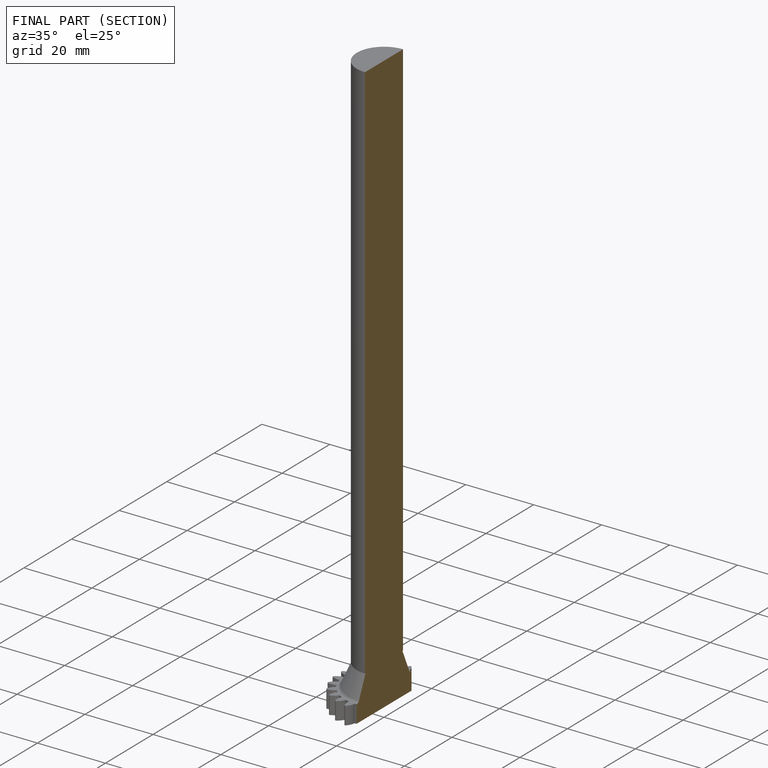
[diagram: finished part — half-section view (interior)]
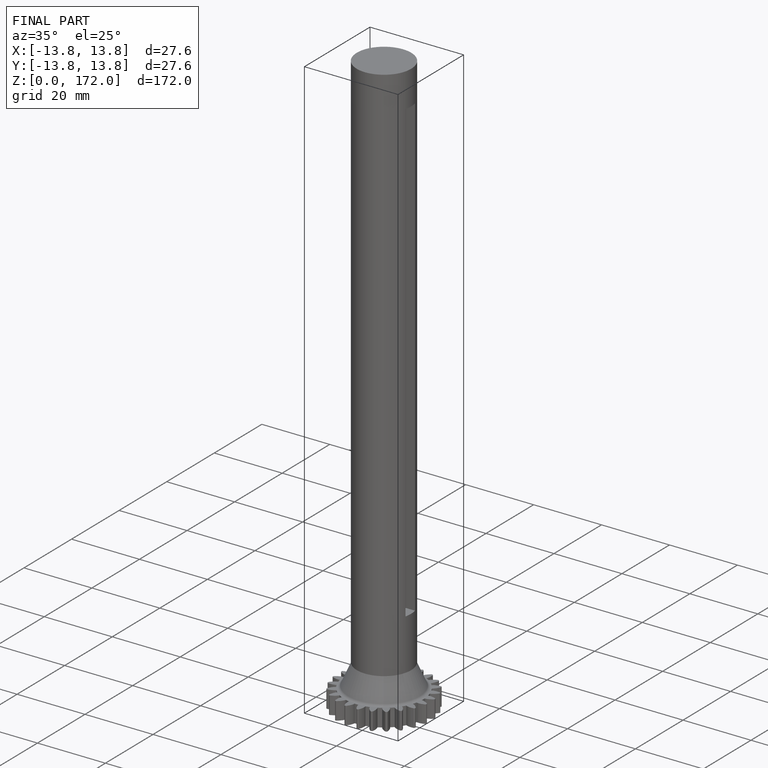
[diagram: finished part — iso view with bounding-box wireframe]
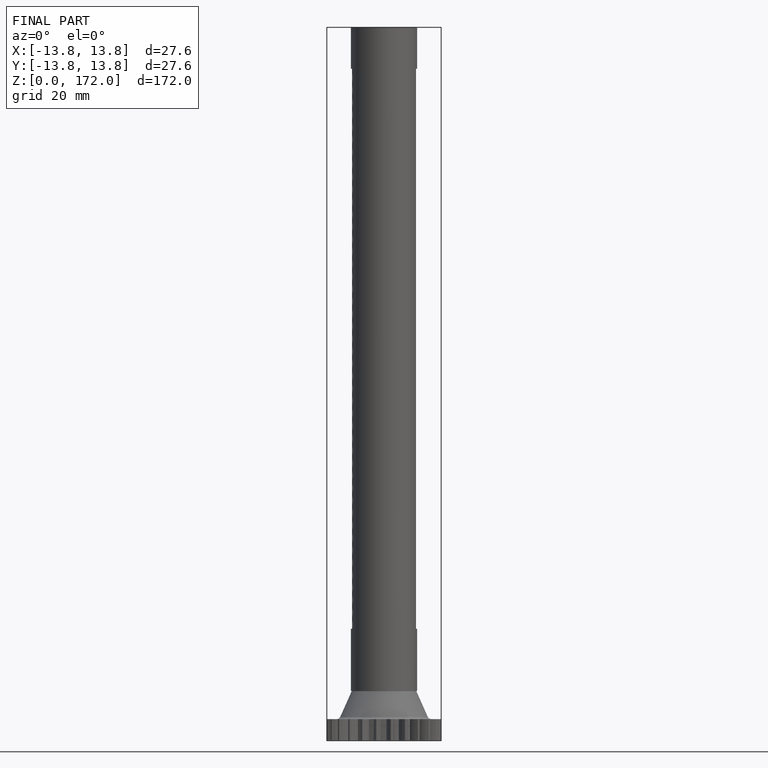
[diagram: finished part — front view with bounding-box wireframe]
